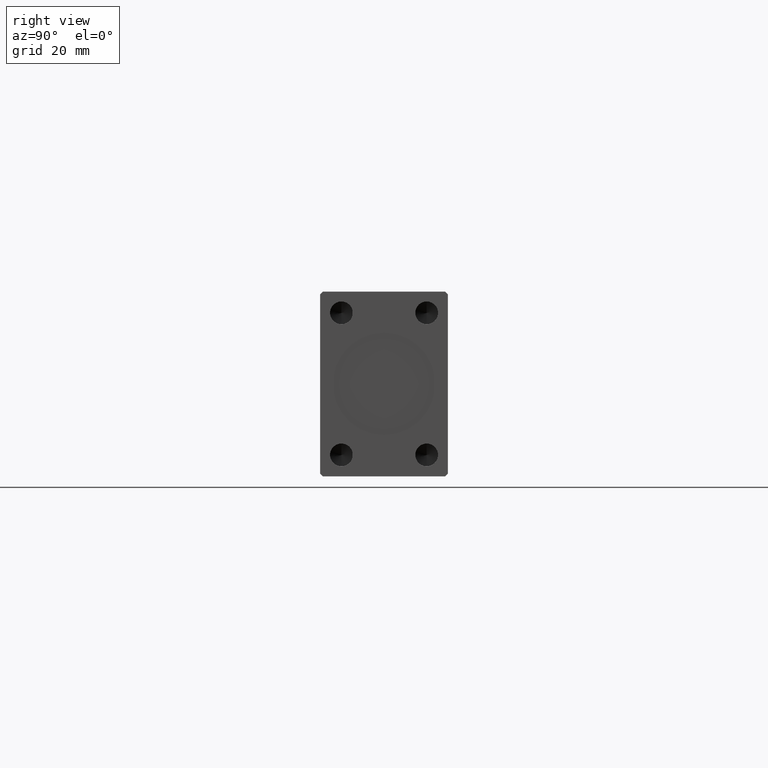
[diagram: clean part render]
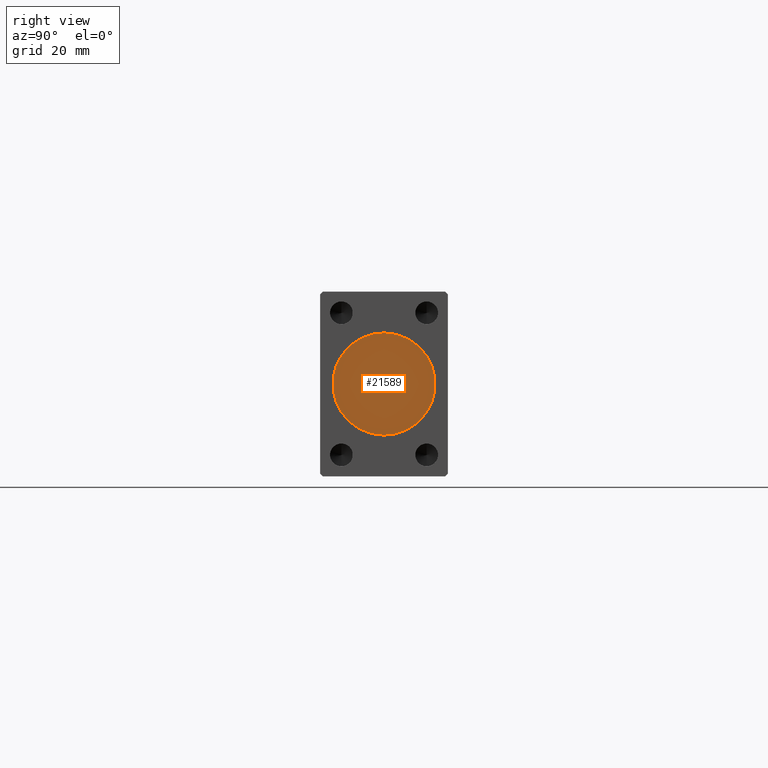
[diagram: same view with one face highlighted and labeled with its STEP entity id]
A machine part, right view. The second image highlights one B-rep face of the part: STEP entity #21589.
In plain terms, the highlighted planar face has unit normal (1, 0, 0).
Its self-contained STEP definition (entity closure, byte-faithful):
#2147 = VERTEX_POINT ( 'NONE', #33209 ) ;
#3105 = CARTESIAN_POINT ( 'NONE',  ( 237.7999999999999829, 0.000000000000000000, 0.000000000000000000 ) ) ;
#7686 = EDGE_CURVE ( 'NONE', #2147, #15910, #41214, .T. ) ;
#9783 = DIRECTION ( 'NONE',  ( 1.000000000000000000, 0.000000000000000000, 0.000000000000000000 ) ) ;
#9950 = DIRECTION ( 'NONE',  ( 0.000000000000000000, 0.000000000000000000, -1.000000000000000000 ) ) ;
#12107 = DIRECTION ( 'NONE',  ( 0.000000000000000000, 0.000000000000000000, -1.000000000000000000 ) ) ;
#15688 = CARTESIAN_POINT ( 'NONE',  ( 237.7999999999999829, 0.000000000000000000, 0.000000000000000000 ) ) ;
#15910 = VERTEX_POINT ( 'NONE', #42659 ) ;
#16595 = AXIS2_PLACEMENT_3D ( 'NONE', #3105, #9783, #40147 ) ;
#16894 = EDGE_CURVE ( 'NONE', #15910, #2147, #17936, .T. ) ;
#17936 = CIRCLE ( 'NONE', #23582, 18.00000000000000000 ) ;
#21589 = ADVANCED_FACE ( 'NONE', ( #23398 ), #40364, .T. ) ;
#22158 = DIRECTION ( 'NONE',  ( 1.000000000000000000, 0.000000000000000000, 0.000000000000000000 ) ) ;
#23216 = EDGE_LOOP ( 'NONE', ( #40130, #23472 ) ) ;
#23398 = FACE_OUTER_BOUND ( 'NONE', #23216, .T. ) ;
#23472 = ORIENTED_EDGE ( 'NONE', *, *, #16894, .T. ) ;
#23582 = AXIS2_PLACEMENT_3D ( 'NONE', #26910, #34055, #9950 ) ;
#25508 = AXIS2_PLACEMENT_3D ( 'NONE', #15688, #22158, #12107 ) ;
#26910 = CARTESIAN_POINT ( 'NONE',  ( 237.7999999999999829, 0.000000000000000000, 0.000000000000000000 ) ) ;
#33209 = CARTESIAN_POINT ( 'NONE',  ( 237.7999999999999829, 0.000000000000000000, -18.00000000000000000 ) ) ;
#34055 = DIRECTION ( 'NONE',  ( 1.000000000000000000, 0.000000000000000000, 0.000000000000000000 ) ) ;
#40130 = ORIENTED_EDGE ( 'NONE', *, *, #7686, .T. ) ;
#40147 = DIRECTION ( 'NONE',  ( 0.000000000000000000, 0.000000000000000000, -1.000000000000000000 ) ) ;
#40364 = PLANE ( 'NONE',  #16595 ) ;
#41214 = CIRCLE ( 'NONE', #25508, 18.00000000000000000 ) ;
#42659 = CARTESIAN_POINT ( 'NONE',  ( 237.7999999999999829, 2.204364238465235428E-15, 18.00000000000000000 ) ) ;